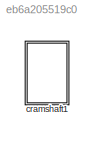
MODEL slx_eb6a205519c0
KIND model
CONFIG AbsTol = auto
CONFIG EnableMultiTasking = off
CONFIG FixedStep = auto
CONFIG MaxStep = auto
CONFIG MinStep = auto
CONFIG RelTol = 1e-3
CONFIG SampleTimeConstraint = Unconstrained
CONFIG Solver = VariableStepAuto
CONFIG SolverName = VariableStepAuto
CONFIG StartTime = 0.0
CONFIG StopTime = 10.0
WORKSPACE source: external: MATLAB File  (data not in archive)
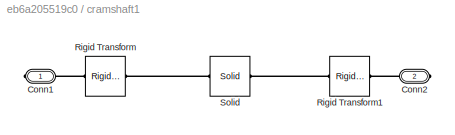
BLOCK [SubSystem] cramshaft1
  Ports = [0, 0, 0, 0, 0, 0, 2]
  RequestExecContextInheritance = off
  Variant = off
BLOCK [PMIOPort] cramshaft1/Conn1
  Port = 1
  Side = Right
BLOCK [PMIOPort] cramshaft1/Conn2
  Port = 2
  Side = Right
BLOCK [Reference] cramshaft1/Rigid Transform  REF=sm_lib/Frames and
Transforms/Rigid
Transform
  Ports = [0, 0, 0, 0, 0, 1, 1]
  SourceBlock = sm_lib/Frames and\nTransforms/Rigid\nTransform
  SourceType = Rigid\nTransform
BLOCK [Reference] cramshaft1/Rigid Transform1  REF=sm_lib/Frames and
Transforms/Rigid
Transform
  Ports = [0, 0, 0, 0, 0, 1, 1]
  SourceBlock = sm_lib/Frames and\nTransforms/Rigid\nTransform
  SourceType = Rigid\nTransform
BLOCK [Reference] cramshaft1/Solid  REF=sm_lib/Body Elements/Solid
  Ports = [0, 0, 0, 0, 0, 1, 1]
  SourceBlock = sm_lib/Body Elements/Solid
  SourceType = Solid
PLINE cramshaft1/Conn1:RConn1 -- cramshaft1/Rigid Transform:RConn1
PLINE cramshaft1/Conn2:RConn1 -- cramshaft1/Rigid Transform1:RConn1
PLINE cramshaft1/Rigid Transform1:LConn1 -- cramshaft1/Solid:RConn1
PLINE cramshaft1/Rigid Transform:LConn1 -- cramshaft1/Solid:LConn1
